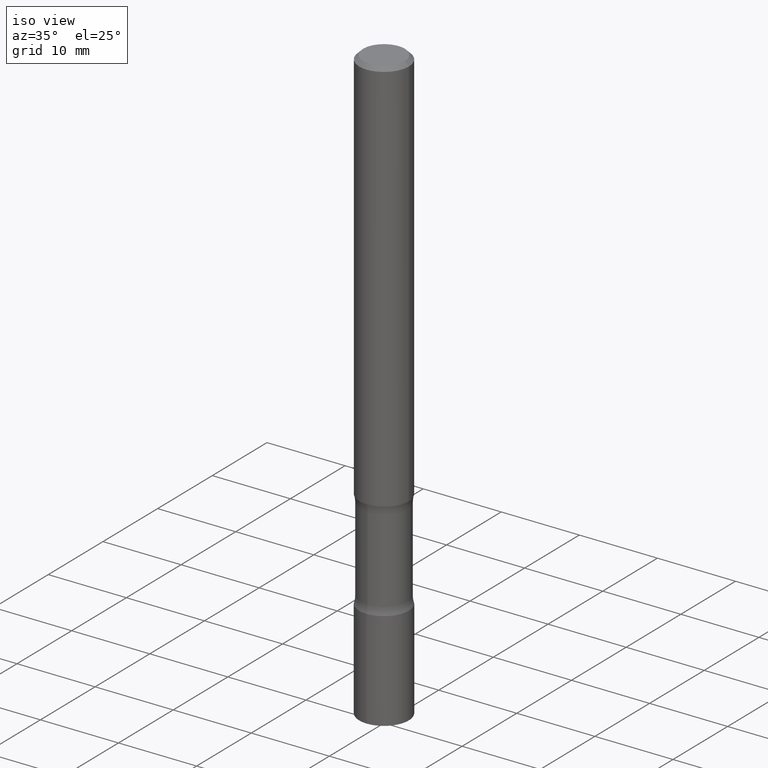
[diagram: clean part render]
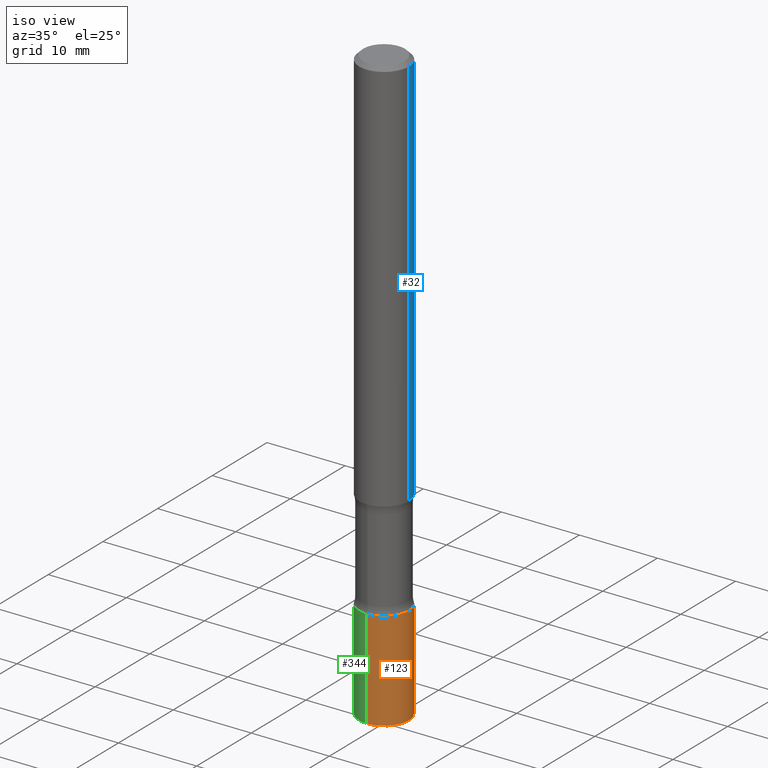
[diagram: same view with three faces highlighted in distinct colors, each labeled with its STEP entity id]
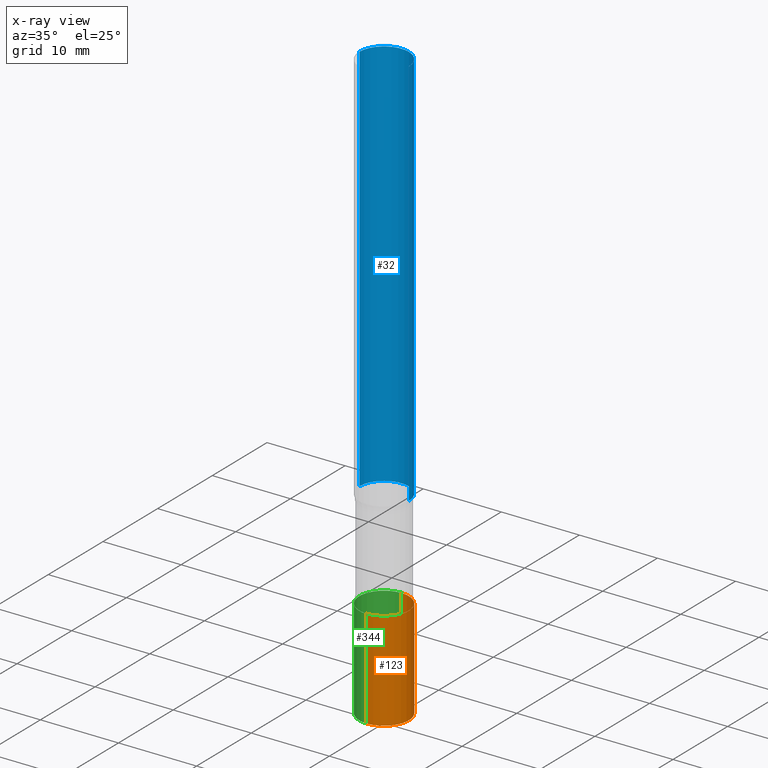
[diagram: x-ray of the same camera — body ghosted, the three highlighted faces saturated]
A machine part, iso view with three faces highlighted in distinct colors.
The next image is the same camera in x-ray (body ghosted, the three faces saturated) — at least one of them is partly hidden behind the body in this view.
Their STEP definitions:

[orange] entity #123 — the highlighted cylindrical surface (edge-blend (fillet) strip) has radius 3.175 mm, axis along (-0, 0, 1).
#19 = DIRECTION ( 'NONE',  ( -6.982962677686265922E-15, -1.000000000000000000, 3.490931898794811600E-15 ) ) ;
#25 = DIRECTION ( 'NONE',  ( -2.445852478120250956E-29, 3.490931898794811600E-15, 1.000000000000000000 ) ) ;
#54 = DIRECTION ( 'NONE',  ( -2.445852478120250956E-29, 3.490931898794811600E-15, 1.000000000000000000 ) ) ;
#62 = EDGE_CURVE ( 'NONE', #491, #314, #311, .T. ) ;
#63 = CIRCLE ( 'NONE', #208, 0.1249999999999999584 ) ;
#69 = CARTESIAN_POINT ( 'NONE',  ( 8.881784197001248379E-16, 0.1249999999999999584, -4.363664873493513021E-16 ) ) ;
#87 = VECTOR ( 'NONE', #342, 39.37007874015748143 ) ;
#108 = LINE ( 'NONE', #69, #87 ) ;
#115 = VERTEX_POINT ( 'NONE', #201 ) ;
#122 = ORIENTED_EDGE ( 'NONE', *, *, #388, .T. ) ;
#123 = ADVANCED_FACE ( 'NONE', ( #243 ), #202, .T. ) ;
#125 = EDGE_LOOP ( 'NONE', ( #122, #147, #419, #461 ) ) ;
#147 = ORIENTED_EDGE ( 'NONE', *, *, #320, .T. ) ;
#172 = CARTESIAN_POINT ( 'NONE',  ( 8.881784197001922855E-16, 0.1249999999999894945, -3.000000000000000888 ) ) ;
#201 = CARTESIAN_POINT ( 'NONE',  ( -8.728703347107095803E-16, -0.1250000000000104361, -2.999999999999999556 ) ) ;
#202 = CYLINDRICAL_SURFACE ( 'NONE', #204, 0.1249999999999999584 ) ;
#204 = AXIS2_PLACEMENT_3D ( 'NONE', #354, #54, #19 ) ;
#208 = AXIS2_PLACEMENT_3D ( 'NONE', #498, #25, #493 ) ;
#209 = DIRECTION ( 'NONE',  ( -2.445852478120250956E-29, 3.490931898794811995E-15, 1.000000000000000000 ) ) ;
#230 = VERTEX_POINT ( 'NONE', #172 ) ;
#243 = FACE_OUTER_BOUND ( 'NONE', #125, .T. ) ;
#275 = DIRECTION ( 'NONE',  ( -6.982962677686265922E-15, -1.000000000000000000, 4.370956789862822727E-15 ) ) ;
#278 = CARTESIAN_POINT ( 'NONE',  ( 6.114631195300628231E-29, -8.727329746987029987E-15, -2.500000000000000000 ) ) ;
#279 = LINE ( 'NONE', #394, #427 ) ;
#281 = DIRECTION ( 'NONE',  ( -2.445852478120250956E-29, 3.490931898794811600E-15, 1.000000000000000000 ) ) ;
#311 = CIRCLE ( 'NONE', #333, 0.1249999999999999584 ) ;
#314 = VERTEX_POINT ( 'NONE', #338 ) ;
#320 = EDGE_CURVE ( 'NONE', #230, #314, #108, .T. ) ;
#333 = AXIS2_PLACEMENT_3D ( 'NONE', #278, #281, #275 ) ;
#338 = CARTESIAN_POINT ( 'NONE',  ( 8.881784197001982020E-16, 0.1249999999999912292, -2.500000000000000444 ) ) ;
#342 = DIRECTION ( 'NONE',  ( -2.445852478120250956E-29, 3.490931898794811995E-15, 1.000000000000000000 ) ) ;
#354 = CARTESIAN_POINT ( 'NONE',  ( 0.000000000000000000, 0.000000000000000000, 0.000000000000000000 ) ) ;
#388 = EDGE_CURVE ( 'NONE', #115, #230, #63, .T. ) ;
#394 = CARTESIAN_POINT ( 'NONE',  ( -8.728703347107829444E-16, -0.1249999999999999584, 4.363664873493513021E-16 ) ) ;
#419 = ORIENTED_EDGE ( 'NONE', *, *, #62, .F. ) ;
#427 = VECTOR ( 'NONE', #209, 39.37007874015748143 ) ;
#461 = ORIENTED_EDGE ( 'NONE', *, *, #467, .F. ) ;
#467 = EDGE_CURVE ( 'NONE', #115, #491, #279, .T. ) ;
#477 = CARTESIAN_POINT ( 'NONE',  ( -8.728703347107218077E-16, -0.1250000000000086875, -2.499999999999999556 ) ) ;
#491 = VERTEX_POINT ( 'NONE', #477 ) ;
#493 = DIRECTION ( 'NONE',  ( -6.982962677686265922E-15, -1.000000000000000000, 4.370956789862822727E-15 ) ) ;
#498 = CARTESIAN_POINT ( 'NONE',  ( 7.337557434360752308E-29, -1.047279569638443441E-14, -3.000000000000000444 ) ) ;

[blue] entity #32 — the highlighted cylindrical surface (edge-blend (fillet) strip) has radius 3.175 mm, axis along (-0, 0, 1).
#9 = CARTESIAN_POINT ( 'NONE',  ( 0.1249999999999998751, -8.728703347107825500E-16, 6.095220969744913435E-30 ) ) ;
#32 = ADVANCED_FACE ( 'NONE', ( #82 ), #160, .T. ) ;
#35 = CARTESIAN_POINT ( 'NONE',  ( 0.1250000000000000000, -7.855833012397076871E-15, -2.000000000000000444 ) ) ;
#47 = EDGE_CURVE ( 'NONE', #382, #304, #316, .T. ) ;
#53 = AXIS2_PLACEMENT_3D ( 'NONE', #248, #470, #120 ) ;
#78 = LINE ( 'NONE', #9, #361 ) ;
#80 = DIRECTION ( 'NONE',  ( -2.445468806185136877E-29, 3.491481338843145188E-15, 1.000000000000000000 ) ) ;
#82 = FACE_OUTER_BOUND ( 'NONE', #463, .T. ) ;
#83 = CIRCLE ( 'NONE', #503, 0.1249999999999997641 ) ;
#93 = ORIENTED_EDGE ( 'NONE', *, *, #47, .T. ) ;
#106 = VERTEX_POINT ( 'NONE', #390 ) ;
#120 = DIRECTION ( 'NONE',  ( 1.000000000000000000, -6.982962677686267499E-15, 4.876176775795935793E-29 ) ) ;
#127 = CARTESIAN_POINT ( 'NONE',  ( -0.1249999999999998751, 8.881784197001243449E-16, -6.148668862818626622E-30 ) ) ;
#138 = CARTESIAN_POINT ( 'NONE',  ( 0.1249999999999997641, -9.273918764983027713E-16, -0.02000000000000000042 ) ) ;
#160 = CYLINDRICAL_SURFACE ( 'NONE', #53, 0.1249999999999998751 ) ;
#165 = EDGE_CURVE ( 'NONE', #304, #106, #210, .T. ) ;
#190 = CARTESIAN_POINT ( 'NONE',  ( -0.1250000000000000000, -2.638217732531449633E-15, -2.000000000000000444 ) ) ;
#191 = VERTEX_POINT ( 'NONE', #138 ) ;
#197 = EDGE_CURVE ( 'NONE', #191, #106, #83, .T. ) ;
#210 = LINE ( 'NONE', #127, #371 ) ;
#221 = DIRECTION ( 'NONE',  ( -2.445468806185136877E-29, 3.491481338843145188E-15, 1.000000000000000000 ) ) ;
#248 = CARTESIAN_POINT ( 'NONE',  ( 0.000000000000000000, 0.000000000000000000, 0.000000000000000000 ) ) ;
#276 = CARTESIAN_POINT ( 'NONE',  ( 4.890937612370274875E-29, -6.982962677686292743E-15, -2.000000000000000444 ) ) ;
#304 = VERTEX_POINT ( 'NONE', #190 ) ;
#316 = CIRCLE ( 'NONE', #478, 0.1250000000000000000 ) ;
#322 = DIRECTION ( 'NONE',  ( -2.445468806185136597E-29, 3.491481338843145583E-15, 1.000000000000000000 ) ) ;
#361 = VECTOR ( 'NONE', #80, 39.37007874015748143 ) ;
#364 = DIRECTION ( 'NONE',  ( -2.445468806185136597E-29, 3.491481338843145583E-15, 1.000000000000000000 ) ) ;
#371 = VECTOR ( 'NONE', #221, 39.37007874015748143 ) ;
#375 = ORIENTED_EDGE ( 'NONE', *, *, #465, .F. ) ;
#382 = VERTEX_POINT ( 'NONE', #35 ) ;
#390 = CARTESIAN_POINT ( 'NONE',  ( -0.1249999999999997641, 8.030407079339186601E-16, -0.02000000000000000042 ) ) ;
#408 = CARTESIAN_POINT ( 'NONE',  ( 4.890937612370273159E-31, -6.982962677686291609E-17, -0.02000000000000000042 ) ) ;
#437 = ORIENTED_EDGE ( 'NONE', *, *, #165, .T. ) ;
#463 = EDGE_LOOP ( 'NONE', ( #93, #437, #502, #375 ) ) ;
#465 = EDGE_CURVE ( 'NONE', #382, #191, #78, .T. ) ;
#470 = DIRECTION ( 'NONE',  ( -2.445468806185136597E-29, 3.491481338843145583E-15, 1.000000000000000000 ) ) ;
#476 = DIRECTION ( 'NONE',  ( 1.000000000000000000, -6.982962677686270655E-15, 0.000000000000000000 ) ) ;
#478 = AXIS2_PLACEMENT_3D ( 'NONE', #276, #322, #476 ) ;
#483 = DIRECTION ( 'NONE',  ( 1.000000000000000000, -6.982962677686266711E-15, 0.000000000000000000 ) ) ;
#502 = ORIENTED_EDGE ( 'NONE', *, *, #197, .F. ) ;
#503 = AXIS2_PLACEMENT_3D ( 'NONE', #408, #364, #483 ) ;

[green] entity #344 — the highlighted cylindrical surface (edge-blend (fillet) strip) has radius 3.175 mm, axis along (-0, 0, 1).
#7 = ORIENTED_EDGE ( 'NONE', *, *, #140, .T. ) ;
#21 = AXIS2_PLACEMENT_3D ( 'NONE', #188, #488, #263 ) ;
#30 = CARTESIAN_POINT ( 'NONE',  ( 0.000000000000000000, 0.000000000000000000, 0.000000000000000000 ) ) ;
#37 = ORIENTED_EDGE ( 'NONE', *, *, #445, .F. ) ;
#43 = EDGE_LOOP ( 'NONE', ( #245, #7, #151, #37 ) ) ;
#69 = CARTESIAN_POINT ( 'NONE',  ( 8.881784197001248379E-16, 0.1249999999999999584, -4.363664873493513021E-16 ) ) ;
#87 = VECTOR ( 'NONE', #342, 39.37007874015748143 ) ;
#99 = DIRECTION ( 'NONE',  ( -6.982962677686265922E-15, -1.000000000000000000, 4.370956789862822727E-15 ) ) ;
#108 = LINE ( 'NONE', #69, #87 ) ;
#110 = DIRECTION ( 'NONE',  ( -6.982962677686265922E-15, -1.000000000000000000, 3.490931898794811600E-15 ) ) ;
#115 = VERTEX_POINT ( 'NONE', #201 ) ;
#140 = EDGE_CURVE ( 'NONE', #230, #115, #247, .T. ) ;
#151 = ORIENTED_EDGE ( 'NONE', *, *, #467, .T. ) ;
#172 = CARTESIAN_POINT ( 'NONE',  ( 8.881784197001922855E-16, 0.1249999999999894945, -3.000000000000000888 ) ) ;
#188 = CARTESIAN_POINT ( 'NONE',  ( 6.114631195300628231E-29, -8.727329746987029987E-15, -2.500000000000000000 ) ) ;
#198 = AXIS2_PLACEMENT_3D ( 'NONE', #370, #254, #99 ) ;
#201 = CARTESIAN_POINT ( 'NONE',  ( -8.728703347107095803E-16, -0.1250000000000104361, -2.999999999999999556 ) ) ;
#209 = DIRECTION ( 'NONE',  ( -2.445852478120250956E-29, 3.490931898794811995E-15, 1.000000000000000000 ) ) ;
#225 = CIRCLE ( 'NONE', #21, 0.1249999999999999584 ) ;
#226 = DIRECTION ( 'NONE',  ( -2.445852478120250956E-29, 3.490931898794811600E-15, 1.000000000000000000 ) ) ;
#230 = VERTEX_POINT ( 'NONE', #172 ) ;
#245 = ORIENTED_EDGE ( 'NONE', *, *, #320, .F. ) ;
#247 = CIRCLE ( 'NONE', #198, 0.1249999999999999584 ) ;
#254 = DIRECTION ( 'NONE',  ( -2.445852478120250956E-29, 3.490931898794811600E-15, 1.000000000000000000 ) ) ;
#260 = FACE_OUTER_BOUND ( 'NONE', #43, .T. ) ;
#263 = DIRECTION ( 'NONE',  ( -6.982962677686265922E-15, -1.000000000000000000, 4.370956789862822727E-15 ) ) ;
#279 = LINE ( 'NONE', #394, #427 ) ;
#305 = AXIS2_PLACEMENT_3D ( 'NONE', #30, #226, #110 ) ;
#314 = VERTEX_POINT ( 'NONE', #338 ) ;
#320 = EDGE_CURVE ( 'NONE', #230, #314, #108, .T. ) ;
#338 = CARTESIAN_POINT ( 'NONE',  ( 8.881784197001982020E-16, 0.1249999999999912292, -2.500000000000000444 ) ) ;
#342 = DIRECTION ( 'NONE',  ( -2.445852478120250956E-29, 3.490931898794811995E-15, 1.000000000000000000 ) ) ;
#344 = ADVANCED_FACE ( 'NONE', ( #260 ), #490, .T. ) ;
#370 = CARTESIAN_POINT ( 'NONE',  ( 7.337557434360752308E-29, -1.047279569638443441E-14, -3.000000000000000444 ) ) ;
#394 = CARTESIAN_POINT ( 'NONE',  ( -8.728703347107829444E-16, -0.1249999999999999584, 4.363664873493513021E-16 ) ) ;
#427 = VECTOR ( 'NONE', #209, 39.37007874015748143 ) ;
#445 = EDGE_CURVE ( 'NONE', #314, #491, #225, .T. ) ;
#467 = EDGE_CURVE ( 'NONE', #115, #491, #279, .T. ) ;
#477 = CARTESIAN_POINT ( 'NONE',  ( -8.728703347107218077E-16, -0.1250000000000086875, -2.499999999999999556 ) ) ;
#488 = DIRECTION ( 'NONE',  ( -2.445852478120250956E-29, 3.490931898794811600E-15, 1.000000000000000000 ) ) ;
#490 = CYLINDRICAL_SURFACE ( 'NONE', #305, 0.1249999999999999584 ) ;
#491 = VERTEX_POINT ( 'NONE', #477 ) ;